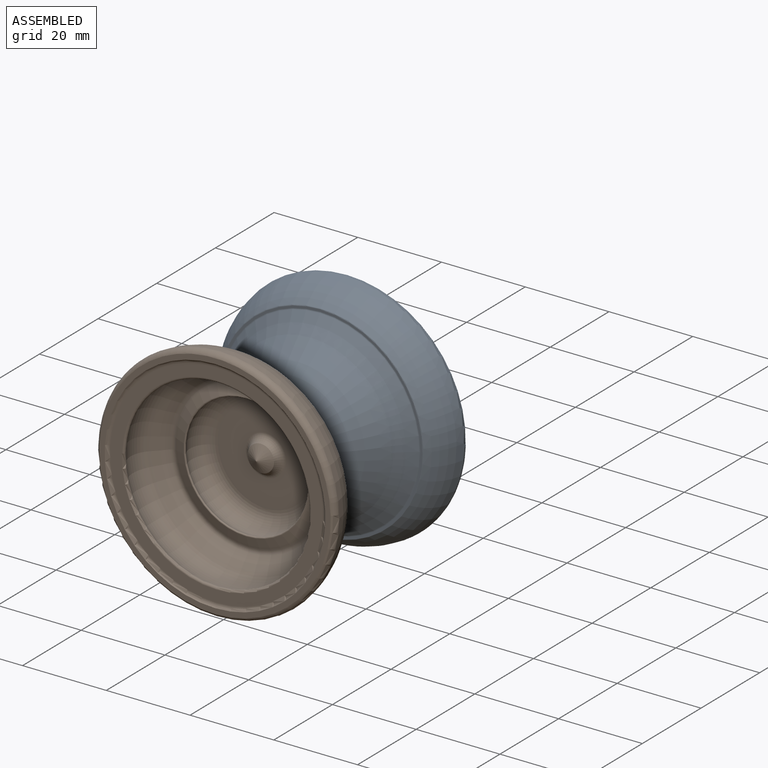
[diagram: assembled view]
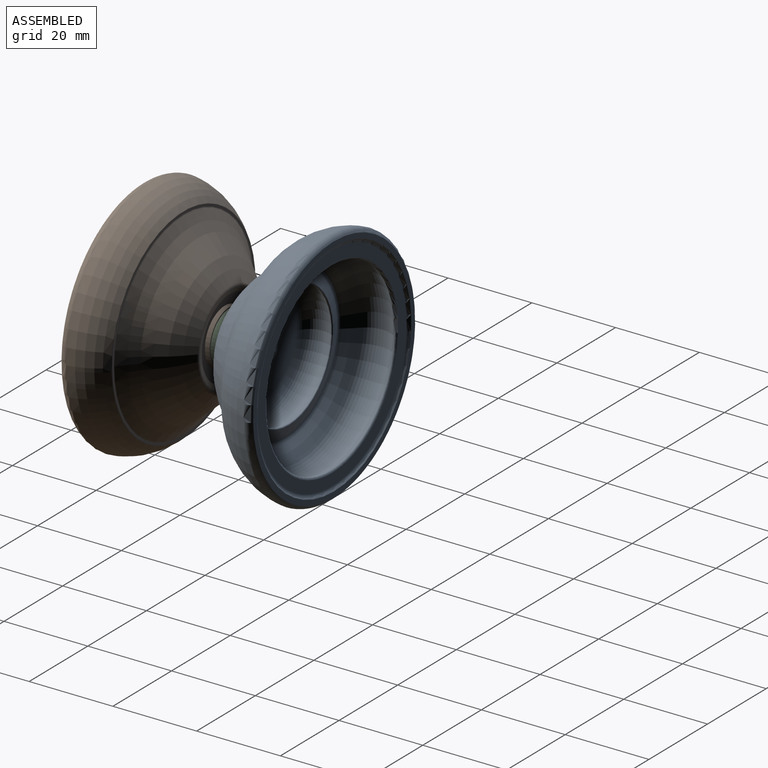
[diagram: assembled view, second angle]
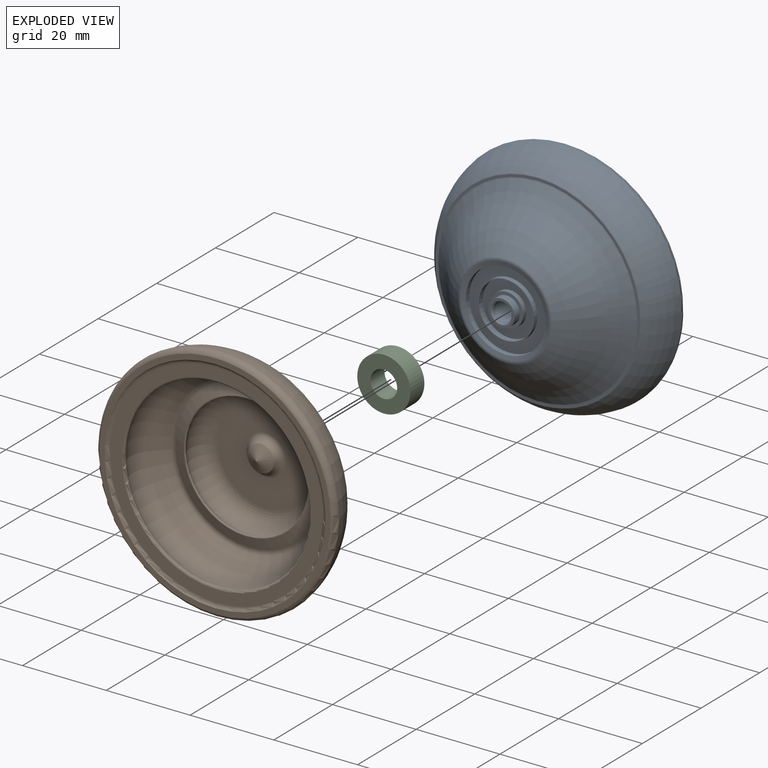
[diagram: exploded view]
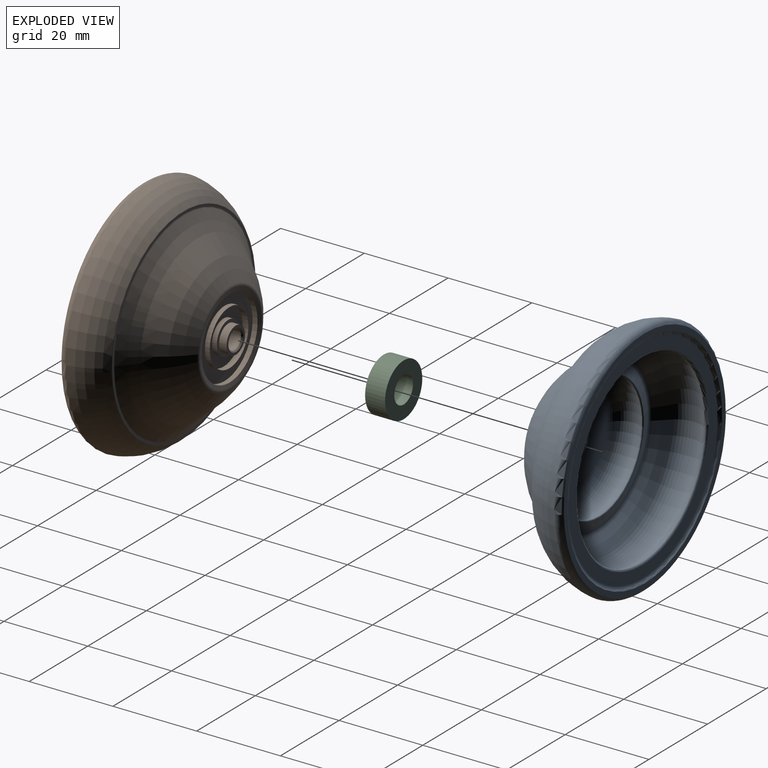
[diagram: exploded view, second angle]
ASSEMBLY  parts=3 mates=2
PART A: 36 faces, bbox 31.7x81.6x81.6 mm
  f0: plane 6.32x6.32mm, normal (-1,0,0), area 11.1mm2, adj f32,f34
  f1: cone r=0mm half-angle=62.5deg, axis (-1,0,0), area 35.4mm2, adj f2
  f2: torus R=6.07mm, axis (-1,0,0), area 34.6mm2, adj f1,f3
  f3: torus R=4.85mm, axis (-1,0,0), area 26.9mm2, adj f2,f4
  f4: plane 22.92x22.92mm, normal (1,0,0), area 338.9mm2, adj f3,f5
  f5: torus R=11.46mm, axis (-1,0,0), area 776.5mm2, adj f4,f6
  f6: torus R=14.93mm, axis (-1,0,0), area 58.8mm2, adj f5,f7
  f7: cone r=15.01mm half-angle=71.7deg, axis (-1,0,0), area 263mm2, adj f6,f8
  f8: torus R=17.86mm, axis (-1,0,0), area 156.4mm2, adj f7,f9
  f9: torus R=37.69mm, axis (-1,0,0), area 474.3mm2, adj f8,f10
  f10: torus R=18.73mm, axis (-1,0,0), area 1228.9mm2, adj f9,f11
  f11: torus R=22.59mm, axis (-1,0,0), area 166.7mm2, adj f10,f12
  f12: plane 50.77x50.77mm, normal (1,0,0), area 421.1mm2, adj f11,f13
  f13: torus R=25.38mm, axis (-1,0,0), area 185.7mm2, adj f12,f14
  f14: plane 55.25x55.25mm, normal (1,0,0), area 215.4mm2, adj f13,f15
  f15: torus R=26.9mm, axis (-1,0,0), area 364.4mm2, adj f14,f16
  f16: torus R=14.68mm, axis (-1,0,0), area 1548.1mm2, adj f15,f17
  f17: torus R=24.4mm, axis (-1,0,0), area 30.8mm2, adj f16,f18
  f18: plane 48.8x48.8mm, normal (-1,0,0), area 68.5mm2, adj f17,f19
  f19: torus R=23.91mm, axis (-1,0,0), area 50.5mm2, adj f18,f20
  f20: torus R=37.69mm, axis (-1,0,0), area 1007mm2, adj f19,f21
  f21: revolved ~35.82x35.82mm, area 823.3mm2, adj f20,f22
  f22: torus R=10.74mm, axis (-1,0,0), area 53.8mm2, adj f21,f23
  f23: cone r=9.53mm half-angle=76deg, axis (-1,0,0), area 62.9mm2, adj f22,f24
  f24: cylinder r=9.53mm len=19.05mm, axis (-1,0,0), area 71.8mm2, adj f23,f25
  f25: plane 19.05x19.05mm, normal (-1,0,0), area 142.5mm2, adj f24,f26
  f26: cylinder r=6.74mm len=13.47mm, axis (-1,0,0), area 48.4mm2, adj f25,f27
  f27: plane 13.47x13.47mm, normal (-1,0,0), area 10.7mm2, adj f26,f28
  f28: cylinder r=6.48mm len=12.95mm, axis (-1,0,0), area 56.9mm2, adj f27,f29
  f29: plane 12.95x12.95mm, normal (-1,0,0), area 83.4mm2, adj f28,f30
  f30: cylinder r=3.92mm len=7.85mm, axis (-1,0,0), area 28.2mm2, adj f29,f31
  f31: plane 7.85x7.85mm, normal (-1,0,0), area 17mm2, adj f30,f32
  f32: cylinder r=3.16mm len=6.32mm, axis (-1,0,0), area 35.3mm2, adj f0,f31
  f33: cylinder r=2.25mm len=6.01mm, axis (-1,0,0), area 84.9mm2, adj f34,f35
  f34: cone r=2.25mm half-angle=41deg, axis (-1,0,0), area 6.7mm2, adj f0,f33
  f35: cone r=0mm half-angle=59deg, axis (-1,0,0), area 18.5mm2, adj f33
PART B: same geometry as A
PART C: 8 faces, bbox 4.8x12.7x12.7 mm
  f0: cylinder r=3.17mm len=6.35mm, axis (1,0,0), area 95mm2, adj f1,f3
  f1: plane 12.7x12.7mm, normal (1,0,0), area 95mm2, adj f0,f2
  f2: cylinder r=6.35mm len=12.7mm, axis (1,0,0), area 190mm2, adj f1,f3
  f3: plane 12.7x12.7mm, normal (-1,0,0), area 95mm2, adj f0,f2
  f4: plane 11.56x11.56mm, normal (-1,0,0), area 60.8mm2, adj f5,f7
  f5: cylinder r=3.75mm len=7.49mm, axis (1,0,0), area 71.7mm2, adj f4,f6
  f6: plane 11.56x11.56mm, normal (1,0,0), area 60.8mm2, adj f5,f7
  f7: cylinder r=5.78mm len=11.56mm, axis (1,0,0), area 110.7mm2, adj f4,f6
PLACE A rot(axis=(0,0,1),90deg) t=(0,-0.05,0.31)mm
PLACE B rot(axis=(0.71,-0.71,0),180deg) t=(0,-0.05,0.31)mm
PLACE C rot(axis=(0.71,-0.71,0),180deg) t=(0,-0.05,0.31)mm
MATE fastened C.f0 <-> A.f1  axis (0,1,0) through (0,2.33,0.31)mm
MATE fastened B.f1 <-> C.f0  axis (0,1,0) through (0,-2.43,0.31)mm
